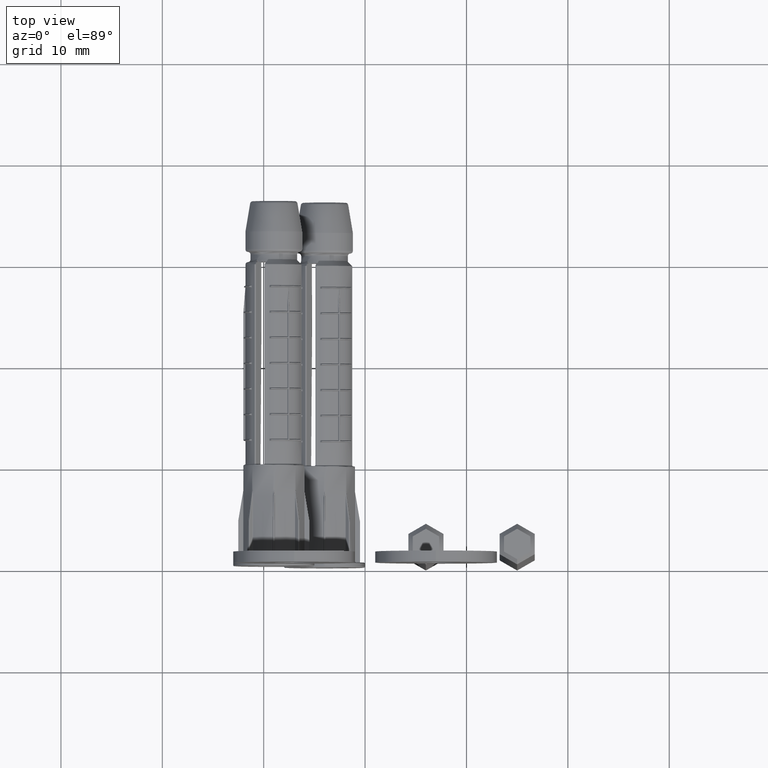
[diagram: clean part render]
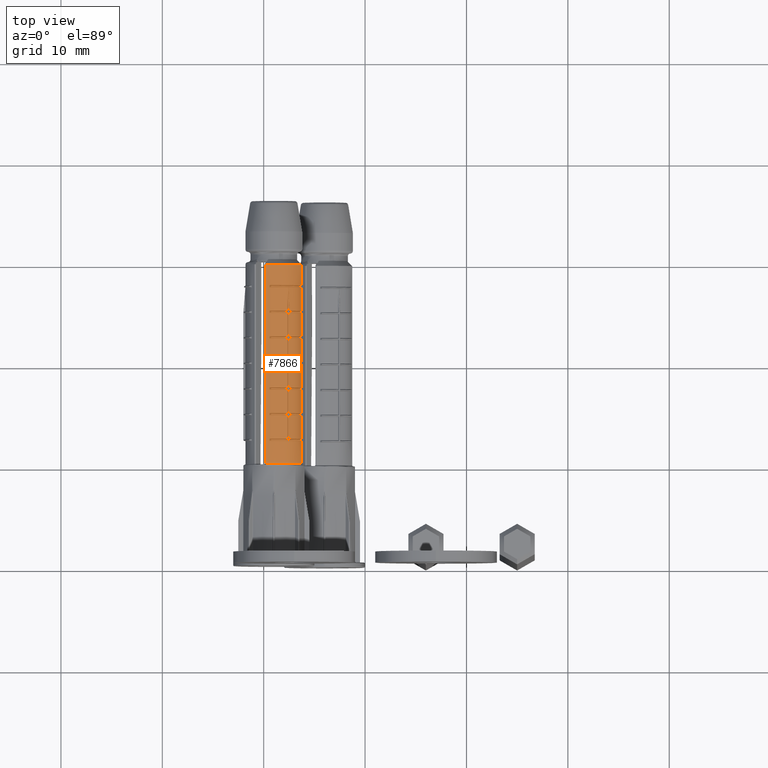
[diagram: same view with one face highlighted and labeled with its STEP entity id]
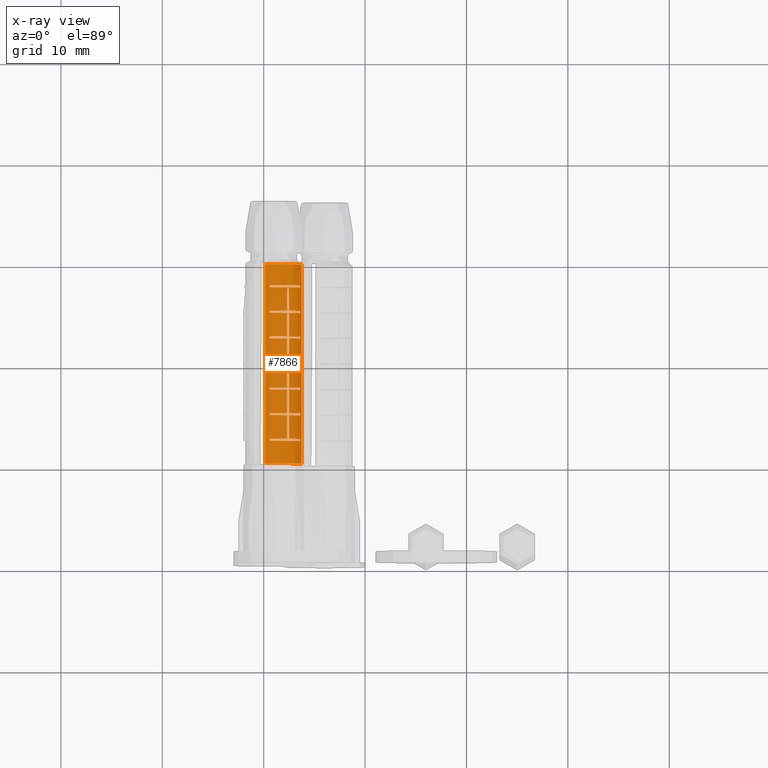
[diagram: x-ray of the same camera — body ghosted, the highlighted face saturated]
A machine part, top view. The second image highlights one B-rep face of the part: STEP entity #7866.
The next image is the same camera in x-ray: the body ghosted, the highlighted face saturated — about 0% of this face is hidden behind the body in this view.
In plain terms, the highlighted cylindrical surface (edge-blend (fillet) strip) has radius 2.8 mm, axis along (0, 1, 0).
Its self-contained STEP definition (entity closure, byte-faithful):
#12 = DIRECTION ( 'NONE',  ( 4.540655609425219795E-18, 4.182044590197350193E-18, 1.000000000000000000 ) ) ;
#15 = CARTESIAN_POINT ( 'NONE',  ( 2.483748580117750571, -1.292668940898268781, -17.37499999999999645 ) ) ;
#19 = CARTESIAN_POINT ( 'NONE',  ( 1.016432192480531516, -2.608997048309794398, -36.00000000000000000 ) ) ;
#21 = CARTESIAN_POINT ( 'NONE',  ( 2.361358431559888338, -1.504654896546389287, -22.42499999999999716 ) ) ;
#44 = EDGE_CURVE ( 'NONE', #821, #12773, #1514, .T. ) ;
#94 = ORIENTED_EDGE ( 'NONE', *, *, #44, .T. ) ;
#191 = EDGE_CURVE ( 'NONE', #16725, #10409, #23261, .T. ) ;
#216 = DIRECTION ( 'NONE',  ( -0.000000000000000000, -6.803593328596414068E-18, -1.000000000000000000 ) ) ;
#229 = LINE ( 'NONE', #26628, #25954 ) ;
#230 = CARTESIAN_POINT ( 'NONE',  ( 0.6222222222222220100, -2.729988920521994267, -10.09999999999999787 ) ) ;
#403 = EDGE_CURVE ( 'NONE', #5732, #11425, #16669, .T. ) ;
#421 = LINE ( 'NONE', #23364, #16932 ) ;
#437 = VECTOR ( 'NONE', #6446, 1000.000000000000000 ) ;
#527 = CARTESIAN_POINT ( 'NONE',  ( 1.016432192480531294, -2.608997048309793954, -12.32500000000000107 ) ) ;
#538 = CARTESIAN_POINT ( 'NONE',  ( -1.256626439908429046E-16, -1.157380840337116386E-16, -27.67499999999999361 ) ) ;
#550 = CARTESIAN_POINT ( 'NONE',  ( 1.016432192480531294, -2.608997048309794842, -25.14999999999999858 ) ) ;
#560 = VERTEX_POINT ( 'NONE', #23003 ) ;
#708 = VERTEX_POINT ( 'NONE', #4021 ) ;
#714 = EDGE_CURVE ( 'NONE', #7219, #18919, #25548, .T. ) ;
#754 = EDGE_CURVE ( 'NONE', #7028, #10923, #3454, .T. ) ;
#778 = VECTOR ( 'NONE', #12419, 1000.000000000000000 ) ;
#813 = DIRECTION ( 'NONE',  ( -0.8660254037844363761, 0.5000000000000039968, 0.000000000000000000 ) ) ;
#821 = VERTEX_POINT ( 'NONE', #230 ) ;
#986 = CARTESIAN_POINT ( 'NONE',  ( 2.483748580117775884, -1.292668940898222152, -26.50506116889412667 ) ) ;
#989 = CARTESIAN_POINT ( 'NONE',  ( 2.363096400378641437, -1.501944770892657210, -26.69959461916819521 ) ) ;
#1099 = DIRECTION ( 'NONE',  ( 0.000000000000000000, 6.803593328596414068E-18, 1.000000000000000000 ) ) ;
#1107 = CARTESIAN_POINT ( 'NONE',  ( -1.027323331632455730E-16, -9.461875885321501577E-17, -22.62500000000000000 ) ) ;
#1164 = VERTEX_POINT ( 'NONE', #1557 ) ;
#1252 = ORIENTED_EDGE ( 'NONE', *, *, #10383, .T. ) ;
#1269 = CARTESIAN_POINT ( 'NONE',  ( 2.455181414339694612, -1.346136777107339810, -27.47499999999999076 ) ) ;
#1289 = EDGE_CURVE ( 'NONE', #25523, #7966, #15981, .T. ) ;
#1298 = DIRECTION ( 'NONE',  ( -0.000000000000000000, -6.803593328596414068E-18, -1.000000000000000000 ) ) ;
#1312 = DIRECTION ( 'NONE',  ( -0.000000000000000000, -6.803593328596414068E-18, -1.000000000000000000 ) ) ;
#1500 = VERTEX_POINT ( 'NONE', #16163 ) ;
#1514 = LINE ( 'NONE', #15770, #12737 ) ;
#1534 = VECTOR ( 'NONE', #20898, 1000.000000000000000 ) ;
#1557 = CARTESIAN_POINT ( 'NONE',  ( 2.767673818475167025, 0.4242424242424212011, -20.10000000000000142 ) ) ;
#1616 = LINE ( 'NONE', #8891, #5237 ) ;
#1629 = VECTOR ( 'NONE', #23681, 1000.000000000000000 ) ;
#1639 = ORIENTED_EDGE ( 'NONE', *, *, #24068, .T. ) ;
#1717 = DIRECTION ( 'NONE',  ( -0.8660254037844363761, 0.5000000000000039968, 0.000000000000000000 ) ) ;
#1792 = CARTESIAN_POINT ( 'NONE',  ( 1.016432192480531072, -2.608997048309794398, -36.00000000000000000 ) ) ;
#1809 = CIRCLE ( 'NONE', #3439, 2.799999999999999822 ) ;
#1833 = VERTEX_POINT ( 'NONE', #5149 ) ;
#2206 = AXIS2_PLACEMENT_3D ( 'NONE', #19788, #26332, #26144 ) ;
#2207 = VERTEX_POINT ( 'NONE', #4478 ) ;
#2261 = CARTESIAN_POINT ( 'NONE',  ( -6.833686692184955106E-17, -6.293977108247012473E-17, -15.05000000000000071 ) ) ;
#2277 = AXIS2_PLACEMENT_3D ( 'NONE', #2261, #16833, #21255 ) ;
#2350 = DIRECTION ( 'NONE',  ( 4.540655609425219795E-18, 4.182044590197350193E-18, 1.000000000000000000 ) ) ;
#2473 = AXIS2_PLACEMENT_3D ( 'NONE', #17939, #9616, #11693 ) ;
#2527 = ORIENTED_EDGE ( 'NONE', *, *, #10143, .F. ) ;
#2586 = AXIS2_PLACEMENT_3D ( 'NONE', #24107, #4883, #2818 ) ;
#2623 = ORIENTED_EDGE ( 'NONE', *, *, #8346, .T. ) ;
#2680 = ORIENTED_EDGE ( 'NONE', *, *, #13028, .T. ) ;
#2686 = ORIENTED_EDGE ( 'NONE', *, *, #25937, .T. ) ;
#2716 = CARTESIAN_POINT ( 'NONE',  ( -1.018242020413605627E-16, -9.378234993517556545E-17, -22.42499999999999716 ) ) ;
#2818 = DIRECTION ( 'NONE',  ( -0.8660254037844363761, 0.5000000000000039968, 0.000000000000000000 ) ) ;
#2873 = DIRECTION ( 'NONE',  ( -0.8660254037844363761, 0.5000000000000039968, 0.000000000000000000 ) ) ;
#2885 = FACE_OUTER_BOUND ( 'NONE', #6356, .T. ) ;
#2898 = DIRECTION ( 'NONE',  ( 0.000000000000000000, 1.000000000000000000, 0.000000000000000000 ) ) ;
#2905 = VECTOR ( 'NONE', #18699, 1000.000000000000000 ) ;
#3045 = CARTESIAN_POINT ( 'NONE',  ( 2.361358431559887894, -1.504654896546388843, -17.57499999999999929 ) ) ;
#3082 = VERTEX_POINT ( 'NONE', #15 ) ;
#3091 = EDGE_CURVE ( 'NONE', #10409, #4357, #15930, .T. ) ;
#3097 = CARTESIAN_POINT ( 'NONE',  ( 2.483748580117750571, -1.292668940898268781, -17.57499999999999929 ) ) ;
#3200 = DIRECTION ( 'NONE',  ( -0.8660254037844363761, 0.5000000000000039968, 0.000000000000000000 ) ) ;
#3219 = ORIENTED_EDGE ( 'NONE', *, *, #13482, .T. ) ;
#3313 = CARTESIAN_POINT ( 'NONE',  ( 2.393379353113193275, -1.453181087164112872, -27.47499999999999076 ) ) ;
#3357 = AXIS2_PLACEMENT_3D ( 'NONE', #14645, #8482, #4388 ) ;
#3439 = AXIS2_PLACEMENT_3D ( 'NONE', #15127, #12, #14779 ) ;
#3454 = CIRCLE ( 'NONE', #19847, 2.800000000000000266 ) ;
#3472 = ORIENTED_EDGE ( 'NONE', *, *, #21124, .T. ) ;
#3573 = FACE_BOUND ( 'NONE', #18648, .T. ) ;
#3635 = DIRECTION ( 'NONE',  ( -0.000000000000000000, -6.803593328596414068E-18, -1.000000000000000000 ) ) ;
#3639 = CARTESIAN_POINT ( 'NONE',  ( -5.596358038616586259E-17, -5.154369957418233836E-17, -12.32500000000000107 ) ) ;
#3669 = AXIS2_PLACEMENT_3D ( 'NONE', #1107, #15871, #24323 ) ;
#3832 = CIRCLE ( 'NONE', #2206, 2.799999999999999822 ) ;
#3857 = CIRCLE ( 'NONE', #19787, 2.800000000000000266 ) ;
#3912 = CARTESIAN_POINT ( 'NONE',  ( -9.035904662756184758E-17, -8.322268734492726022E-17, -19.89999999999999858 ) ) ;
#3943 = DIRECTION ( 'NONE',  ( 0.000000000000000000, 6.803593328596414068E-18, 1.000000000000000000 ) ) ;
#3980 = DIRECTION ( 'NONE',  ( 0.000000000000000000, 6.803593328596414068E-18, 1.000000000000000000 ) ) ;
#4021 = CARTESIAN_POINT ( 'NONE',  ( 2.767673818475166581, 0.4242424242424209790, -14.84999999999999964 ) ) ;
#4124 = EDGE_CURVE ( 'NONE', #16725, #10536, #9684, .T. ) ;
#4130 = LINE ( 'NONE', #20455, #8755 ) ;
#4145 = CARTESIAN_POINT ( 'NONE',  ( 2.767673818475167025, 0.4242424242424212011, -19.89999999999999858 ) ) ;
#4144 = AXIS2_PLACEMENT_3D ( 'NONE', #21901, #15724, #11424 ) ;
#4151 = DIRECTION ( 'NONE',  ( -0.8660254037844363761, 0.5000000000000039968, 0.000000000000000000 ) ) ;
#4357 = VERTEX_POINT ( 'NONE', #15023 ) ;
#4388 = DIRECTION ( 'NONE',  ( 0.000000000000000000, 1.000000000000000000, 0.000000000000000000 ) ) ;
#4469 = ORIENTED_EDGE ( 'NONE', *, *, #27078, .T. ) ;
#4478 = CARTESIAN_POINT ( 'NONE',  ( 2.483748580117751015, -1.292668940898269225, -22.62500000000000000 ) ) ;
#4810 = CARTESIAN_POINT ( 'NONE',  ( 2.767673818475167469, 0.4242424242424211456, -12.52500000000000213 ) ) ;
#4811 = CARTESIAN_POINT ( 'NONE',  ( 2.361358431559888338, -1.504654896546389287, -24.94999999999999574 ) ) ;
#4855 = DIRECTION ( 'NONE',  ( 0.000000000000000000, 6.803593328596414068E-18, 1.000000000000000000 ) ) ;
#4883 = DIRECTION ( 'NONE',  ( 4.540655609425219795E-18, 4.182044590197350193E-18, 1.000000000000000000 ) ) ;
#4905 = CARTESIAN_POINT ( 'NONE',  ( 1.016432192480531072, -2.608997048309794398, -24.94999999999999574 ) ) ;
#5063 = CARTESIAN_POINT ( 'NONE',  ( 2.372170073811476598, -1.487569355360271572, -27.08807541499556137 ) ) ;
#5087 = EDGE_CURVE ( 'NONE', #15999, #20782, #15539, .T. ) ;
#5149 = CARTESIAN_POINT ( 'NONE',  ( 2.767673818475167469, 0.4242424242424210901, -17.57499999999999929 ) ) ;
#5237 = VECTOR ( 'NONE', #23597, 1000.000000000000000 ) ;
#5340 = CARTESIAN_POINT ( 'NONE',  ( 2.369438809451845707, -1.491903281495484679, -26.99099585964534498 ) ) ;
#5413 = DIRECTION ( 'NONE',  ( -0.8660254037844363761, 0.5000000000000039968, 0.000000000000000000 ) ) ;
#5418 = CARTESIAN_POINT ( 'NONE',  ( 1.016432192480531738, -2.608997048309794398, -20.10000000000000142 ) ) ;
#5427 = CARTESIAN_POINT ( 'NONE',  ( 2.361358431559888338, -1.504654896546389287, -26.31052289814997636 ) ) ;
#5476 = ORIENTED_EDGE ( 'NONE', *, *, #25418, .T. ) ;
#5529 = AXIS2_PLACEMENT_3D ( 'NONE', #7243, #15455, #2873 ) ;
#5732 = VERTEX_POINT ( 'NONE', #23895 ) ;
#5779 = CARTESIAN_POINT ( 'NONE',  ( 1.016432192480531294, -2.608997048309794842, -22.62500000000000000 ) ) ;
#5790 = VECTOR ( 'NONE', #3943, 1000.000000000000000 ) ;
#5953 = CIRCLE ( 'NONE', #15424, 2.799999999999999822 ) ;
#6049 = ORIENTED_EDGE ( 'NONE', *, *, #9112, .F. ) ;
#6098 = VERTEX_POINT ( 'NONE', #4145 ) ;
#6105 = LINE ( 'NONE', #12654, #7749 ) ;
#6218 = VERTEX_POINT ( 'NONE', #22262 ) ;
#6252 = CARTESIAN_POINT ( 'NONE',  ( 2.767673818475167469, 0.4242424242424211456, -15.05000000000000071 ) ) ;
#6267 = CARTESIAN_POINT ( 'NONE',  ( 2.767673818475167469, 0.4242424242424210346, -36.00000000000000000 ) ) ;
#6301 = AXIS2_PLACEMENT_3D ( 'NONE', #6358, #12546, #14928 ) ;
#6316 = EDGE_CURVE ( 'NONE', #25523, #3082, #7586, .T. ) ;
#6356 = EDGE_LOOP ( 'NONE', ( #24285, #22663, #12925, #94 ) ) ;
#6358 = CARTESIAN_POINT ( 'NONE',  ( -6.742873579996451604E-17, -6.210336216443063743E-17, -14.84999999999999964 ) ) ;
#6416 = DIRECTION ( 'NONE',  ( -0.8660254037844363761, 0.5000000000000039968, 0.000000000000000000 ) ) ;
#6446 = DIRECTION ( 'NONE',  ( -0.000000000000000000, -6.803593328596414068E-18, -1.000000000000000000 ) ) ;
#6507 = CARTESIAN_POINT ( 'NONE',  ( 2.483748580117751903, -1.292668940898269447, -36.00000000000000000 ) ) ;
#6543 = ORIENTED_EDGE ( 'NONE', *, *, #6910, .T. ) ;
#6580 = AXIS2_PLACEMENT_3D ( 'NONE', #11819, #18154, #20551 ) ;
#6659 = ORIENTED_EDGE ( 'NONE', *, *, #22587, .T. ) ;
#6678 = CARTESIAN_POINT ( 'NONE',  ( 1.016432192480531294, -2.608997048309793954, -14.84999999999999964 ) ) ;
#6910 = EDGE_CURVE ( 'NONE', #21684, #20041, #26352, .T. ) ;
#6979 = CARTESIAN_POINT ( 'NONE',  ( 2.483748580117751015, -1.292668940898269003, -19.89999999999999858 ) ) ;
#7026 = EDGE_CURVE ( 'NONE', #7301, #7540, #26993, .T. ) ;
#7028 = VERTEX_POINT ( 'NONE', #550 ) ;
#7083 = VERTEX_POINT ( 'NONE', #23504 ) ;
#7127 = ORIENTED_EDGE ( 'NONE', *, *, #23452, .T. ) ;
#7142 = LINE ( 'NONE', #12620, #1534 ) ;
#7175 = VERTEX_POINT ( 'NONE', #4905 ) ;
#7204 = CARTESIAN_POINT ( 'NONE',  ( 2.483748580117751903, -1.292668940898269447, -36.00000000000000000 ) ) ;
#7219 = VERTEX_POINT ( 'NONE', #15951 ) ;
#7243 = CARTESIAN_POINT ( 'NONE',  ( -1.132893574551592038E-16, -1.043420125254238707E-16, -24.94999999999999574 ) ) ;
#7264 = VECTOR ( 'NONE', #10067, 1000.000000000000000 ) ;
#7301 = VERTEX_POINT ( 'NONE', #20738 ) ;
#7362 = CARTESIAN_POINT ( 'NONE',  ( -7.889389121376318181E-17, -7.266302475467895499E-17, -17.37499999999999645 ) ) ;
#7368 = DIRECTION ( 'NONE',  ( -0.000000000000000000, -6.803593328596414068E-18, -1.000000000000000000 ) ) ;
#7383 = CIRCLE ( 'NONE', #10605, 2.800000000000000266 ) ;
#7414 = VECTOR ( 'NONE', #10750, 1000.000000000000000 ) ;
#7428 = B_SPLINE_CURVE_WITH_KNOTS ( 'NONE', 3,
 ( #17870, #11619, #13712, #5063, #5340, #989, #15753, #5427 ),
 .UNSPECIFIED., .F., .F.,
 ( 4, 2, 2, 4 ),
 ( 0.000000000000000000, 0.0002919254474833839056, 0.0005838508949667678112, 0.001167701789933524997 ),
 .UNSPECIFIED. ) ;
#7513 = CARTESIAN_POINT ( 'NONE',  ( 2.483748580117751015, -1.292668940898269225, -24.94999999999999574 ) ) ;
#7540 = VERTEX_POINT ( 'NONE', #19395 ) ;
#7586 = LINE ( 'NONE', #20230, #7264 ) ;
#7609 = VERTEX_POINT ( 'NONE', #5418 ) ;
#7665 = DIRECTION ( 'NONE',  ( -0.000000000000000000, -6.803593328596414068E-18, -1.000000000000000000 ) ) ;
#7749 = VECTOR ( 'NONE', #21210, 1000.000000000000000 ) ;
#7772 = CIRCLE ( 'NONE', #20412, 2.800000000000000266 ) ;
#7866 = ADVANCED_FACE ( 'NONE', ( #2885, #3573 ), #24341, .T. ) ;
#7965 = ORIENTED_EDGE ( 'NONE', *, *, #22961, .T. ) ;
#7966 = VERTEX_POINT ( 'NONE', #6252 ) ;
#8051 = EDGE_CURVE ( 'NONE', #7175, #20349, #19063, .T. ) ;
#8227 = CARTESIAN_POINT ( 'NONE',  ( 2.767673818475167469, 0.4242424242424209790, -36.00000000000000000 ) ) ;
#8252 = CARTESIAN_POINT ( 'NONE',  ( 1.016432192480531072, -2.608997048309794398, -27.47499999999999076 ) ) ;
#8264 = VECTOR ( 'NONE', #3980, 1000.000000000000000 ) ;
#8346 = EDGE_CURVE ( 'NONE', #15999, #560, #16132, .T. ) ;
#8482 = DIRECTION ( 'NONE',  ( -0.000000000000000000, -6.803593328596413297E-18, -1.000000000000000000 ) ) ;
#8492 = VECTOR ( 'NONE', #7368, 1000.000000000000000 ) ;
#8502 = LINE ( 'NONE', #17541, #18695 ) ;
#8549 = EDGE_CURVE ( 'NONE', #26598, #19681, #1616, .T. ) ;
#8629 = ORIENTED_EDGE ( 'NONE', *, *, #15264, .T. ) ;
#8635 = CARTESIAN_POINT ( 'NONE',  ( 1.016432192480531294, -2.608997048309793954, -17.37499999999999645 ) ) ;
#8712 = ORIENTED_EDGE ( 'NONE', *, *, #714, .T. ) ;
#8755 = VECTOR ( 'NONE', #12271, 1000.000000000000000 ) ;
#8832 = VERTEX_POINT ( 'NONE', #14205 ) ;
#8880 = DIRECTION ( 'NONE',  ( 4.540655609425219795E-18, 4.182044590197350193E-18, 1.000000000000000000 ) ) ;
#8891 = CARTESIAN_POINT ( 'NONE',  ( 2.483748580117751903, -1.292668940898269447, -36.00000000000000000 ) ) ;
#8904 = EDGE_CURVE ( 'NONE', #22719, #1833, #22389, .T. ) ;
#8991 = DIRECTION ( 'NONE',  ( -0.8660254037844363761, 0.5000000000000039968, 0.000000000000000000 ) ) ;
#9035 = EDGE_CURVE ( 'NONE', #12773, #15341, #5953, .T. ) ;
#9051 = VECTOR ( 'NONE', #3635, 1000.000000000000000 ) ;
#9112 = EDGE_CURVE ( 'NONE', #26598, #10971, #27016, .T. ) ;
#9183 = DIRECTION ( 'NONE',  ( 0.000000000000000000, 6.803593328596414068E-18, 1.000000000000000000 ) ) ;
#9239 = DIRECTION ( 'NONE',  ( 4.540655609425219795E-18, 4.182044590197350193E-18, 1.000000000000000000 ) ) ;
#9322 = CARTESIAN_POINT ( 'NONE',  ( 2.361358431559888338, -1.504654896546389287, -22.62500000000000000 ) ) ;
#9361 = CARTESIAN_POINT ( 'NONE',  ( 1.016432192480531516, -2.608997048309794398, -36.00000000000000000 ) ) ;
#9444 = DIRECTION ( 'NONE',  ( 4.540655609425219795E-18, 4.182044590197350193E-18, 1.000000000000000000 ) ) ;
#9499 = AXIS2_PLACEMENT_3D ( 'NONE', #25133, #12540, #16753 ) ;
#9510 = DIRECTION ( 'NONE',  ( 0.000000000000000000, 6.803593328596414068E-18, 1.000000000000000000 ) ) ;
#9524 = DIRECTION ( 'NONE',  ( -0.8660254037844363761, 0.5000000000000039968, 0.000000000000000000 ) ) ;
#9558 = CARTESIAN_POINT ( 'NONE',  ( 2.483748580117751015, -1.292668940898269225, -25.14999999999999858 ) ) ;
#9591 = ORIENTED_EDGE ( 'NONE', *, *, #3091, .T. ) ;
#9602 = CARTESIAN_POINT ( 'NONE',  ( 2.361358431559887894, -1.504654896546388843, -12.52500000000000213 ) ) ;
#9610 = AXIS2_PLACEMENT_3D ( 'NONE', #3912, #14816, #6416 ) ;
#9613 = DIRECTION ( 'NONE',  ( 4.540655609425219795E-18, 4.182044590197350193E-18, 1.000000000000000000 ) ) ;
#9616 = DIRECTION ( 'NONE',  ( 4.540655609425219795E-18, 4.182044590197350193E-18, 1.000000000000000000 ) ) ;
#9684 = CIRCLE ( 'NONE', #20257, 2.799999999999999822 ) ;
#9820 = ORIENTED_EDGE ( 'NONE', *, *, #14003, .T. ) ;
#9883 = AXIS2_PLACEMENT_3D ( 'NONE', #21052, #27017, #27296 ) ;
#9982 = VERTEX_POINT ( 'NONE', #23690 ) ;
#9993 = CARTESIAN_POINT ( 'NONE',  ( 0.6222222222222217880, -2.729988920521993379, -29.74999999999999645 ) ) ;
#10029 = EDGE_CURVE ( 'NONE', #2207, #14407, #14163, .T. ) ;
#10067 = DIRECTION ( 'NONE',  ( -0.000000000000000000, -6.803593328596414068E-18, -1.000000000000000000 ) ) ;
#10143 = EDGE_CURVE ( 'NONE', #7609, #16971, #17101, .T. ) ;
#10150 = CARTESIAN_POINT ( 'NONE',  ( 2.767673818475167469, 0.4242424242424216452, -36.00000000000000000 ) ) ;
#10322 = CARTESIAN_POINT ( 'NONE',  ( 2.675350868333214560, 0.8261342090173465769, -36.00000000000000000 ) ) ;
#10332 = CIRCLE ( 'NONE', #2473, 2.800000000000000266 ) ;
#10383 = EDGE_CURVE ( 'NONE', #22891, #23911, #23035, .T. ) ;
#10409 = VERTEX_POINT ( 'NONE', #8635 ) ;
#10450 = LINE ( 'NONE', #23113, #5790 ) ;
#10469 = CARTESIAN_POINT ( 'NONE',  ( -1.247545128689578942E-16, -1.149016751156721759E-16, -27.47499999999999076 ) ) ;
#10529 = ORIENTED_EDGE ( 'NONE', *, *, #20172, .T. ) ;
#10536 = VERTEX_POINT ( 'NONE', #3045 ) ;
#10605 = AXIS2_PLACEMENT_3D ( 'NONE', #2716, #24005, #19575 ) ;
#10750 = DIRECTION ( 'NONE',  ( 0.000000000000000000, 6.803593328596414068E-18, 1.000000000000000000 ) ) ;
#10758 = AXIS2_PLACEMENT_3D ( 'NONE', #7362, #22094, #9524 ) ;
#10772 = VERTEX_POINT ( 'NONE', #8252 ) ;
#10861 = DIRECTION ( 'NONE',  ( 4.540655609425219795E-18, 4.182044590197350193E-18, 1.000000000000000000 ) ) ;
#10923 = VERTEX_POINT ( 'NONE', #14879 ) ;
#10971 = VERTEX_POINT ( 'NONE', #4810 ) ;
#11082 = DIRECTION ( 'NONE',  ( 4.540655609425219795E-18, 4.182044590197350193E-18, 1.000000000000000000 ) ) ;
#11095 = LINE ( 'NONE', #17655, #14036 ) ;
#11349 = ORIENTED_EDGE ( 'NONE', *, *, #22723, .T. ) ;
#11424 = DIRECTION ( 'NONE',  ( -0.8660254037844363761, 0.5000000000000039968, 0.000000000000000000 ) ) ;
#11425 = VERTEX_POINT ( 'NONE', #13061 ) ;
#11517 = AXIS2_PLACEMENT_3D ( 'NONE', #3639, #18389, #1717 ) ;
#11529 = CARTESIAN_POINT ( 'NONE',  ( 2.474357888538994743, -1.310574868337772481, -27.08807541499458083 ) ) ;
#11619 = CARTESIAN_POINT ( 'NONE',  ( 2.384165743644992563, -1.468355839205425672, -27.37920234786882290 ) ) ;
#11633 = CARTESIAN_POINT ( 'NONE',  ( -1.247545128689578942E-16, -1.149016751156721759E-16, -27.47499999999999076 ) ) ;
#11693 = DIRECTION ( 'NONE',  ( -0.8660254037844363761, 0.5000000000000039968, 0.000000000000000000 ) ) ;
#11819 = CARTESIAN_POINT ( 'NONE',  ( -1.132893574551592038E-16, -1.043420125254238707E-16, -24.94999999999999574 ) ) ;
#11883 = AXIS2_PLACEMENT_3D ( 'NONE', #25808, #15153, #8991 ) ;
#12023 = LINE ( 'NONE', #10150, #778 ) ;
#12046 = EDGE_CURVE ( 'NONE', #20041, #21565, #27264, .T. ) ;
#12080 = VECTOR ( 'NONE', #14383, 1000.000000000000000 ) ;
#12098 = VERTEX_POINT ( 'NONE', #3313 ) ;
#12119 = DIRECTION ( 'NONE',  ( -0.8660254037844363761, 0.5000000000000039968, 0.000000000000000000 ) ) ;
#12218 = VECTOR ( 'NONE', #14531, 1000.000000000000000 ) ;
#12271 = DIRECTION ( 'NONE',  ( 0.000000000000000000, 6.803593328596414068E-18, 1.000000000000000000 ) ) ;
#12326 = LINE ( 'NONE', #22301, #23192 ) ;
#12360 = CARTESIAN_POINT ( 'NONE',  ( 2.767673818475166581, 0.4242424242424209235, -17.37499999999999645 ) ) ;
#12419 = DIRECTION ( 'NONE',  ( -0.000000000000000000, -6.803593328596414068E-18, -1.000000000000000000 ) ) ;
#12540 = DIRECTION ( 'NONE',  ( 4.540655609425219795E-18, 4.182044590197350193E-18, 1.000000000000000000 ) ) ;
#12546 = DIRECTION ( 'NONE',  ( 4.540655609425219795E-18, 4.182044590197350193E-18, 1.000000000000000000 ) ) ;
#12560 = CIRCLE ( 'NONE', #11517, 2.799999999999999822 ) ;
#12586 = CIRCLE ( 'NONE', #2277, 2.799999999999999822 ) ;
#12620 = CARTESIAN_POINT ( 'NONE',  ( 2.361358431559888338, -1.504654896546389509, -36.00000000000000000 ) ) ;
#12654 = CARTESIAN_POINT ( 'NONE',  ( 1.016432192480531072, -2.608997048309794398, -36.00000000000000000 ) ) ;
#12673 = ORIENTED_EDGE ( 'NONE', *, *, #8051, .T. ) ;
#12687 = EDGE_CURVE ( 'NONE', #2207, #13805, #19967, .T. ) ;
#12737 = VECTOR ( 'NONE', #26067, 1000.000000000000000 ) ;
#12773 = VERTEX_POINT ( 'NONE', #9993 ) ;
#12814 = CARTESIAN_POINT ( 'NONE',  ( 2.767673818475166581, 0.4242424242424209790, -12.32500000000000107 ) ) ;
#12878 = EDGE_CURVE ( 'NONE', #4357, #23175, #7142, .T. ) ;
#12925 = ORIENTED_EDGE ( 'NONE', *, *, #21722, .T. ) ;
#12947 = ORIENTED_EDGE ( 'NONE', *, *, #12046, .T. ) ;
#13028 = EDGE_CURVE ( 'NONE', #7609, #7219, #11095, .T. ) ;
#13041 = DIRECTION ( 'NONE',  ( -0.8660254037844363761, 0.5000000000000039968, 0.000000000000000000 ) ) ;
#13061 = CARTESIAN_POINT ( 'NONE',  ( 2.455181414339694612, -1.346136777107339810, -27.47499999999999076 ) ) ;
#13094 = CARTESIAN_POINT ( 'NONE',  ( 2.767673818475167469, 0.4242424242424216452, -36.00000000000000000 ) ) ;
#13365 = ORIENTED_EDGE ( 'NONE', *, *, #8904, .T. ) ;
#13431 = CARTESIAN_POINT ( 'NONE',  ( 0.000000000000000000, -2.024069015257432827E-16, -29.74999999999999645 ) ) ;
#13482 = EDGE_CURVE ( 'NONE', #3082, #22719, #17338, .T. ) ;
#13712 = CARTESIAN_POINT ( 'NONE',  ( 2.379905641839961117, -1.475161883330791346, -27.28203077829557444 ) ) ;
#13720 = CARTESIAN_POINT ( 'NONE',  ( 1.016432192480531738, -2.608997048309794842, -15.05000000000000071 ) ) ;
#13805 = VERTEX_POINT ( 'NONE', #7513 ) ;
#13892 = CARTESIAN_POINT ( 'NONE',  ( 2.463716330371346075, -1.330570181223416082, -27.37920234786985674 ) ) ;
#14003 = EDGE_CURVE ( 'NONE', #560, #14177, #18631, .T. ) ;
#14036 = VECTOR ( 'NONE', #4855, 1000.000000000000000 ) ;
#14163 = CIRCLE ( 'NONE', #27267, 2.800000000000000266 ) ;
#14177 = VERTEX_POINT ( 'NONE', #21 ) ;
#14181 = EDGE_CURVE ( 'NONE', #9982, #10772, #19909, .T. ) ;
#14192 = VERTEX_POINT ( 'NONE', #17624 ) ;
#14199 = CARTESIAN_POINT ( 'NONE',  ( 2.483748580117751903, -1.292668940898269447, -36.00000000000000000 ) ) ;
#14205 = CARTESIAN_POINT ( 'NONE',  ( 2.675350868333214116, 0.8261342090173467989, -10.09999999999999787 ) ) ;
#14383 = DIRECTION ( 'NONE',  ( 0.000000000000000000, 6.803593328596414068E-18, 1.000000000000000000 ) ) ;
#14407 = VERTEX_POINT ( 'NONE', #16339 ) ;
#14408 = AXIS2_PLACEMENT_3D ( 'NONE', #19971, #21755, #813 ) ;
#14531 = DIRECTION ( 'NONE',  ( 0.000000000000000000, 6.803593328596414068E-18, 1.000000000000000000 ) ) ;
#14577 = CARTESIAN_POINT ( 'NONE',  ( 1.016432192480531516, -2.608997048309794398, -36.00000000000000000 ) ) ;
#14612 = CARTESIAN_POINT ( 'NONE',  ( 2.483748580117751015, -1.292668940898269225, -20.10000000000000142 ) ) ;
#14645 = CARTESIAN_POINT ( 'NONE',  ( 0.000000000000000000, -2.449293598294708880E-16, -36.00000000000000000 ) ) ;
#14779 = DIRECTION ( 'NONE',  ( -0.8660254037844363761, 0.5000000000000039968, 0.000000000000000000 ) ) ;
#14816 = DIRECTION ( 'NONE',  ( 4.540655609425219795E-18, 4.182044590197350193E-18, 1.000000000000000000 ) ) ;
#14879 = CARTESIAN_POINT ( 'NONE',  ( 2.361358431559888338, -1.504654896546389287, -25.14999999999999858 ) ) ;
#14928 = DIRECTION ( 'NONE',  ( -0.8660254037844363761, 0.5000000000000039968, 0.000000000000000000 ) ) ;
#15023 = CARTESIAN_POINT ( 'NONE',  ( 2.361358431559887894, -1.504654896546388843, -17.37499999999999645 ) ) ;
#15058 = ORIENTED_EDGE ( 'NONE', *, *, #14181, .T. ) ;
#15082 = ORIENTED_EDGE ( 'NONE', *, *, #15261, .T. ) ;
#15088 = LINE ( 'NONE', #14199, #20336 ) ;
#15106 = EDGE_CURVE ( 'NONE', #6218, #27059, #7383, .T. ) ;
#15127 = CARTESIAN_POINT ( 'NONE',  ( -5.687171150805088529E-17, -5.238010849222183182E-17, -12.52500000000000213 ) ) ;
#15153 = DIRECTION ( 'NONE',  ( 4.540655609425219795E-18, 4.182044590197350193E-18, 1.000000000000000000 ) ) ;
#15159 = DIRECTION ( 'NONE',  ( 0.000000000000000000, 6.803593328596414068E-18, 1.000000000000000000 ) ) ;
#15242 = LINE ( 'NONE', #9361, #26421 ) ;
#15261 = EDGE_CURVE ( 'NONE', #22026, #10923, #26150, .T. ) ;
#15264 = EDGE_CURVE ( 'NONE', #27059, #14407, #12023, .T. ) ;
#15341 = VERTEX_POINT ( 'NONE', #22894 ) ;
#15345 = CARTESIAN_POINT ( 'NONE',  ( 2.483748580117750571, -1.292668940898268781, -12.52500000000000213 ) ) ;
#15424 = AXIS2_PLACEMENT_3D ( 'NONE', #13431, #25859, #2898 ) ;
#15432 = CARTESIAN_POINT ( 'NONE',  ( 1.016432192480531072, -2.608997048309794398, -36.00000000000000000 ) ) ;
#15455 = DIRECTION ( 'NONE',  ( 4.540655609425219795E-18, 4.182044590197350193E-18, 1.000000000000000000 ) ) ;
#15539 = CIRCLE ( 'NONE', #3669, 2.800000000000000266 ) ;
#15554 = CARTESIAN_POINT ( 'NONE',  ( 2.483748580117750571, -1.292668940898268781, -14.84999999999999964 ) ) ;
#15575 = CARTESIAN_POINT ( 'NONE',  ( -7.889389121376318181E-17, -7.266302475467895499E-17, -17.37499999999999645 ) ) ;
#15640 = EDGE_CURVE ( 'NONE', #708, #7966, #25813, .T. ) ;
#15724 = DIRECTION ( 'NONE',  ( 4.540655609425219795E-18, 4.182044590197350193E-18, 1.000000000000000000 ) ) ;
#15753 = CARTESIAN_POINT ( 'NONE',  ( 2.361358431559591242, -1.504654896546855580, -26.50506116889642172 ) ) ;
#15770 = CARTESIAN_POINT ( 'NONE',  ( 0.6222222222222220100, -2.729988920521994267, -36.00000000000000000 ) ) ;
#15798 = ORIENTED_EDGE ( 'NONE', *, *, #8549, .T. ) ;
#15871 = DIRECTION ( 'NONE',  ( 4.540655609425219795E-18, 4.182044590197350193E-18, 1.000000000000000000 ) ) ;
#15930 = CIRCLE ( 'NONE', #24288, 2.799999999999999822 ) ;
#15951 = CARTESIAN_POINT ( 'NONE',  ( 1.016432192480531516, -2.608997048309793954, -19.89999999999999858 ) ) ;
#15981 = CIRCLE ( 'NONE', #9499, 2.799999999999999822 ) ;
#15999 = VERTEX_POINT ( 'NONE', #5779 ) ;
#16018 = DIRECTION ( 'NONE',  ( -0.8660254037844363761, 0.5000000000000039968, 0.000000000000000000 ) ) ;
#16132 = LINE ( 'NONE', #1792, #7414 ) ;
#16163 = CARTESIAN_POINT ( 'NONE',  ( 2.767673818475167469, 0.4242424242424213121, -24.94999999999999574 ) ) ;
#16260 = CARTESIAN_POINT ( 'NONE',  ( -7.980202233564825381E-17, -7.349943367271844228E-17, -17.57499999999999929 ) ) ;
#16339 = CARTESIAN_POINT ( 'NONE',  ( 2.767673818475167025, 0.4242424242424217007, -22.62500000000000000 ) ) ;
#16386 = ORIENTED_EDGE ( 'NONE', *, *, #10029, .F. ) ;
#16669 = B_SPLINE_CURVE_WITH_KNOTS ( 'NONE', 3,
 ( #26496, #986, #24109, #19487, #11529, #17948, #13892, #1269 ),
 .UNSPECIFIED., .F., .F.,
 ( 4, 2, 2, 4 ),
 ( 0.000000000000000000, 0.0005836036533015567622, 0.0008754054799523351433, 0.001167207306603113524 ),
 .UNSPECIFIED. ) ;
#16725 = VERTEX_POINT ( 'NONE', #19490 ) ;
#16753 = DIRECTION ( 'NONE',  ( -0.8660254037844363761, 0.5000000000000039968, 0.000000000000000000 ) ) ;
#16833 = DIRECTION ( 'NONE',  ( 4.540655609425219795E-18, 4.182044590197350193E-18, 1.000000000000000000 ) ) ;
#16910 = EDGE_CURVE ( 'NONE', #26859, #1164, #10332, .T. ) ;
#16932 = VECTOR ( 'NONE', #25124, 1000.000000000000000 ) ;
#16971 = VERTEX_POINT ( 'NONE', #26764 ) ;
#17101 = CIRCLE ( 'NONE', #4144, 2.800000000000000266 ) ;
#17173 = CIRCLE ( 'NONE', #11883, 2.800000000000000266 ) ;
#17196 = CARTESIAN_POINT ( 'NONE',  ( 2.361358431559887894, -1.504654896546388843, -15.05000000000000071 ) ) ;
#17211 = DIRECTION ( 'NONE',  ( -0.8660254037844363761, 0.5000000000000039968, 0.000000000000000000 ) ) ;
#17325 = CARTESIAN_POINT ( 'NONE',  ( 1.016432192480531738, -2.608997048309794842, -12.52500000000000213 ) ) ;
#17338 = CIRCLE ( 'NONE', #10758, 2.799999999999999822 ) ;
#17456 = AXIS2_PLACEMENT_3D ( 'NONE', #10469, #25505, #4151 ) ;
#17478 = EDGE_CURVE ( 'NONE', #22891, #1833, #23781, .T. ) ;
#17491 = ORIENTED_EDGE ( 'NONE', *, *, #191, .T. ) ;
#17520 = EDGE_CURVE ( 'NONE', #24911, #14192, #17173, .T. ) ;
#17541 = CARTESIAN_POINT ( 'NONE',  ( 2.361358431559888338, -1.504654896546389509, -36.00000000000000000 ) ) ;
#17624 = CARTESIAN_POINT ( 'NONE',  ( 2.767673818475167025, 0.4242424242424212011, -25.14999999999999858 ) ) ;
#17655 = CARTESIAN_POINT ( 'NONE',  ( 1.016432192480531738, -2.608997048309794398, -36.00000000000000000 ) ) ;
#17816 = ORIENTED_EDGE ( 'NONE', *, *, #20383, .T. ) ;
#17870 = CARTESIAN_POINT ( 'NONE',  ( 2.393379353113193275, -1.453181087164112872, -27.47499999999999076 ) ) ;
#17886 = EDGE_CURVE ( 'NONE', #11425, #7301, #24440, .T. ) ;
#17895 = VERTEX_POINT ( 'NONE', #12814 ) ;
#17939 = CARTESIAN_POINT ( 'NONE',  ( -9.126717774944693190E-17, -8.405909626296673519E-17, -20.10000000000000142 ) ) ;
#17948 = CARTESIAN_POINT ( 'NONE',  ( 2.467480486578951915, -1.323477802777900836, -27.28203077829503442 ) ) ;
#17999 = VERTEX_POINT ( 'NONE', #527 ) ;
#18154 = DIRECTION ( 'NONE',  ( 4.540655609425219795E-18, 4.182044590197350193E-18, 1.000000000000000000 ) ) ;
#18389 = DIRECTION ( 'NONE',  ( 4.540655609425219795E-18, 4.182044590197350193E-18, 1.000000000000000000 ) ) ;
#18413 = EDGE_CURVE ( 'NONE', #21684, #23175, #12586, .T. ) ;
#18452 = AXIS2_PLACEMENT_3D ( 'NONE', #21352, #10861, #19463 ) ;
#18459 = DIRECTION ( 'NONE',  ( 4.540655609425219795E-18, 4.182044590197350193E-18, 1.000000000000000000 ) ) ;
#18631 = CIRCLE ( 'NONE', #9883, 2.800000000000000266 ) ;
#18648 = EDGE_LOOP ( 'NONE', ( #21441, #19731, #22334, #23680, #19690, #15058, #17816, #18680, #15082, #20581, #7127, #12673, #3472, #20393, #2623, #9820, #11349, #2527, #2680, #8712, #6659, #18991, #17491, #9591, #20770, #26491, #6543, #12947, #26921, #23257, #4469, #5476, #26971, #2686, #6049, #15798, #7965, #22750, #23185, #24104, #3219, #13365, #19993, #1252, #23901, #10529, #25181, #22485, #22962, #8629, #16386, #20899, #19239, #1639, #22074 ) ) ;
#18680 = ORIENTED_EDGE ( 'NONE', *, *, #23683, .T. ) ;
#18695 = VECTOR ( 'NONE', #15159, 1000.000000000000000 ) ;
#18699 = DIRECTION ( 'NONE',  ( -0.000000000000000000, -6.803593328596414068E-18, -1.000000000000000000 ) ) ;
#18809 = EDGE_CURVE ( 'NONE', #7083, #17895, #12560, .T. ) ;
#18851 = EDGE_CURVE ( 'NONE', #23911, #6098, #25066, .T. ) ;
#18907 = LINE ( 'NONE', #20697, #9051 ) ;
#18919 = VERTEX_POINT ( 'NONE', #22896 ) ;
#18991 = ORIENTED_EDGE ( 'NONE', *, *, #4124, .F. ) ;
#19063 = CIRCLE ( 'NONE', #5529, 2.800000000000000266 ) ;
#19140 = DIRECTION ( 'NONE',  ( 4.540655609425219795E-18, 4.182044590197350193E-18, 1.000000000000000000 ) ) ;
#19222 = VECTOR ( 'NONE', #9510, 1000.000000000000000 ) ;
#19239 = ORIENTED_EDGE ( 'NONE', *, *, #20594, .T. ) ;
#19395 = CARTESIAN_POINT ( 'NONE',  ( 2.767673818475167025, 0.4242424242424215897, -27.67499999999999361 ) ) ;
#19422 = AXIS2_PLACEMENT_3D ( 'NONE', #16260, #18459, #12119 ) ;
#19463 = DIRECTION ( 'NONE',  ( -0.8660254037844363761, 0.5000000000000039968, 0.000000000000000000 ) ) ;
#19487 = CARTESIAN_POINT ( 'NONE',  ( 2.476745546490396688, -1.306042560950279041, -26.99099585964414771 ) ) ;
#19490 = CARTESIAN_POINT ( 'NONE',  ( 1.016432192480531738, -2.608997048309794842, -17.57499999999999929 ) ) ;
#19575 = DIRECTION ( 'NONE',  ( -0.8660254037844363761, 0.5000000000000039968, 0.000000000000000000 ) ) ;
#19681 = VERTEX_POINT ( 'NONE', #15554 ) ;
#19690 = ORIENTED_EDGE ( 'NONE', *, *, #22801, .F. ) ;
#19731 = ORIENTED_EDGE ( 'NONE', *, *, #403, .T. ) ;
#19787 = AXIS2_PLACEMENT_3D ( 'NONE', #11633, #9444, #3200 ) ;
#19788 = CARTESIAN_POINT ( 'NONE',  ( 0.000000000000000000, -6.871629261882377608E-17, -10.09999999999999787 ) ) ;
#19797 = EDGE_CURVE ( 'NONE', #15341, #8832, #22050, .T. ) ;
#19847 = AXIS2_PLACEMENT_3D ( 'NONE', #25650, #2350, #13041 ) ;
#19909 = LINE ( 'NONE', #15432, #23231 ) ;
#19967 = LINE ( 'NONE', #22369, #8492 ) ;
#19971 = CARTESIAN_POINT ( 'NONE',  ( -6.742873579996451604E-17, -6.210336216443063743E-17, -14.84999999999999964 ) ) ;
#19993 = ORIENTED_EDGE ( 'NONE', *, *, #17478, .F. ) ;
#20041 = VERTEX_POINT ( 'NONE', #6678 ) ;
#20154 = AXIS2_PLACEMENT_3D ( 'NONE', #21823, #9239, #16018 ) ;
#20172 = EDGE_CURVE ( 'NONE', #6098, #1164, #229, .T. ) ;
#20230 = CARTESIAN_POINT ( 'NONE',  ( 2.483748580117751903, -1.292668940898269447, -36.00000000000000000 ) ) ;
#20257 = AXIS2_PLACEMENT_3D ( 'NONE', #23561, #19140, #17211 ) ;
#20336 = VECTOR ( 'NONE', #7665, 1000.000000000000000 ) ;
#20349 = VERTEX_POINT ( 'NONE', #4811 ) ;
#20383 = EDGE_CURVE ( 'NONE', #10772, #12098, #3857, .T. ) ;
#20393 = ORIENTED_EDGE ( 'NONE', *, *, #5087, .F. ) ;
#20412 = AXIS2_PLACEMENT_3D ( 'NONE', #538, #11082, #23584 ) ;
#20455 = CARTESIAN_POINT ( 'NONE',  ( 2.361358431559888338, -1.504654896546389509, -36.00000000000000000 ) ) ;
#20470 = EDGE_CURVE ( 'NONE', #26859, #6218, #24635, .T. ) ;
#20551 = DIRECTION ( 'NONE',  ( -0.8660254037844363761, 0.5000000000000039968, 0.000000000000000000 ) ) ;
#20568 = EDGE_CURVE ( 'NONE', #24911, #5732, #15088, .T. ) ;
#20581 = ORIENTED_EDGE ( 'NONE', *, *, #754, .F. ) ;
#20594 = EDGE_CURVE ( 'NONE', #13805, #1500, #23294, .T. ) ;
#20697 = CARTESIAN_POINT ( 'NONE',  ( 2.767673818475167469, 0.4242424242424212011, -36.00000000000000000 ) ) ;
#20738 = CARTESIAN_POINT ( 'NONE',  ( 2.767673818475167469, 0.4242424242424217007, -27.47499999999999076 ) ) ;
#20770 = ORIENTED_EDGE ( 'NONE', *, *, #12878, .T. ) ;
#20782 = VERTEX_POINT ( 'NONE', #9322 ) ;
#20898 = DIRECTION ( 'NONE',  ( 0.000000000000000000, 6.803593328596414068E-18, 1.000000000000000000 ) ) ;
#20899 = ORIENTED_EDGE ( 'NONE', *, *, #12687, .T. ) ;
#20909 = VERTEX_POINT ( 'NONE', #9602 ) ;
#21052 = CARTESIAN_POINT ( 'NONE',  ( -1.018242020413605627E-16, -9.378234993517556545E-17, -22.42499999999999716 ) ) ;
#21124 = EDGE_CURVE ( 'NONE', #20349, #20782, #8502, .T. ) ;
#21198 = CIRCLE ( 'NONE', #2586, 2.799999999999999822 ) ;
#21210 = DIRECTION ( 'NONE',  ( 0.000000000000000000, 6.803593328596414068E-18, 1.000000000000000000 ) ) ;
#21255 = DIRECTION ( 'NONE',  ( -0.8660254037844363761, 0.5000000000000039968, 0.000000000000000000 ) ) ;
#21352 = CARTESIAN_POINT ( 'NONE',  ( -9.035904662756184758E-17, -8.322268734492726022E-17, -19.89999999999999858 ) ) ;
#21441 = ORIENTED_EDGE ( 'NONE', *, *, #20568, .T. ) ;
#21565 = VERTEX_POINT ( 'NONE', #26059 ) ;
#21653 = CARTESIAN_POINT ( 'NONE',  ( -1.027323331632455730E-16, -9.461875885321501577E-17, -22.62500000000000000 ) ) ;
#21684 = VERTEX_POINT ( 'NONE', #13720 ) ;
#21722 = EDGE_CURVE ( 'NONE', #8832, #821, #3832, .T. ) ;
#21755 = DIRECTION ( 'NONE',  ( 4.540655609425219795E-18, 4.182044590197350193E-18, 1.000000000000000000 ) ) ;
#21823 = CARTESIAN_POINT ( 'NONE',  ( -5.687171150805088529E-17, -5.238010849222183182E-17, -12.52500000000000213 ) ) ;
#21901 = CARTESIAN_POINT ( 'NONE',  ( -9.126717774944693190E-17, -8.405909626296673519E-17, -20.10000000000000142 ) ) ;
#22026 = VERTEX_POINT ( 'NONE', #23014 ) ;
#22050 = LINE ( 'NONE', #10322, #12218 ) ;
#22074 = ORIENTED_EDGE ( 'NONE', *, *, #17520, .F. ) ;
#22094 = DIRECTION ( 'NONE',  ( 4.540655609425219795E-18, 4.182044590197350193E-18, 1.000000000000000000 ) ) ;
#22262 = CARTESIAN_POINT ( 'NONE',  ( 2.483748580117751015, -1.292668940898269225, -22.42499999999999716 ) ) ;
#22267 = CARTESIAN_POINT ( 'NONE',  ( 2.483748580117750571, -1.292668940898268781, -15.05000000000000071 ) ) ;
#22301 = CARTESIAN_POINT ( 'NONE',  ( 2.767673818475167469, 0.4242424242424210346, -36.00000000000000000 ) ) ;
#22334 = ORIENTED_EDGE ( 'NONE', *, *, #17886, .T. ) ;
#22369 = CARTESIAN_POINT ( 'NONE',  ( 2.483748580117751903, -1.292668940898269447, -36.00000000000000000 ) ) ;
#22389 = LINE ( 'NONE', #8227, #2905 ) ;
#22485 = ORIENTED_EDGE ( 'NONE', *, *, #20470, .T. ) ;
#22587 = EDGE_CURVE ( 'NONE', #18919, #10536, #4130, .T. ) ;
#22663 = ORIENTED_EDGE ( 'NONE', *, *, #19797, .T. ) ;
#22719 = VERTEX_POINT ( 'NONE', #12360 ) ;
#22723 = EDGE_CURVE ( 'NONE', #14177, #16971, #10450, .T. ) ;
#22750 = ORIENTED_EDGE ( 'NONE', *, *, #15640, .T. ) ;
#22801 = EDGE_CURVE ( 'NONE', #9982, #7540, #7772, .T. ) ;
#22858 = VERTEX_POINT ( 'NONE', #17325 ) ;
#22891 = VERTEX_POINT ( 'NONE', #3097 ) ;
#22894 = CARTESIAN_POINT ( 'NONE',  ( 2.675350868333213672, 0.8261342090173464658, -29.74999999999999645 ) ) ;
#22896 = CARTESIAN_POINT ( 'NONE',  ( 2.361358431559888338, -1.504654896546389065, -19.89999999999999858 ) ) ;
#22961 = EDGE_CURVE ( 'NONE', #19681, #708, #23240, .T. ) ;
#22962 = ORIENTED_EDGE ( 'NONE', *, *, #15106, .T. ) ;
#23003 = CARTESIAN_POINT ( 'NONE',  ( 1.016432192480531072, -2.608997048309794398, -22.42499999999999716 ) ) ;
#23014 = CARTESIAN_POINT ( 'NONE',  ( 2.361358431559888338, -1.504654896546389287, -26.31052289814997636 ) ) ;
#23035 = LINE ( 'NONE', #6507, #23996 ) ;
#23113 = CARTESIAN_POINT ( 'NONE',  ( 2.361358431559888338, -1.504654896546389509, -36.00000000000000000 ) ) ;
#23175 = VERTEX_POINT ( 'NONE', #17196 ) ;
#23185 = ORIENTED_EDGE ( 'NONE', *, *, #1289, .F. ) ;
#23192 = VECTOR ( 'NONE', #1298, 1000.000000000000000 ) ;
#23231 = VECTOR ( 'NONE', #9183, 1000.000000000000000 ) ;
#23240 = CIRCLE ( 'NONE', #14408, 2.799999999999999822 ) ;
#23257 = ORIENTED_EDGE ( 'NONE', *, *, #23483, .F. ) ;
#23261 = LINE ( 'NONE', #14577, #12080 ) ;
#23294 = CIRCLE ( 'NONE', #6580, 2.800000000000000266 ) ;
#23364 = CARTESIAN_POINT ( 'NONE',  ( 2.361358431559888338, -1.504654896546389509, -36.00000000000000000 ) ) ;
#23452 = EDGE_CURVE ( 'NONE', #7028, #7175, #6105, .T. ) ;
#23483 = EDGE_CURVE ( 'NONE', #22858, #20909, #1809, .T. ) ;
#23504 = CARTESIAN_POINT ( 'NONE',  ( 2.424871130596422120, -1.400000000000011235, -12.32500000000000107 ) ) ;
#23561 = CARTESIAN_POINT ( 'NONE',  ( -7.980202233564825381E-17, -7.349943367271844228E-17, -17.57499999999999929 ) ) ;
#23584 = DIRECTION ( 'NONE',  ( -0.8660254037844363761, 0.5000000000000039968, 0.000000000000000000 ) ) ;
#23597 = DIRECTION ( 'NONE',  ( -0.000000000000000000, -6.803593328596414068E-18, -1.000000000000000000 ) ) ;
#23680 = ORIENTED_EDGE ( 'NONE', *, *, #7026, .T. ) ;
#23681 = DIRECTION ( 'NONE',  ( -0.000000000000000000, -6.803593328596414068E-18, -1.000000000000000000 ) ) ;
#23683 = EDGE_CURVE ( 'NONE', #12098, #22026, #7428, .T. ) ;
#23690 = CARTESIAN_POINT ( 'NONE',  ( 1.016432192480531294, -2.608997048309794842, -27.67499999999999361 ) ) ;
#23781 = CIRCLE ( 'NONE', #19422, 2.799999999999999822 ) ;
#23895 = CARTESIAN_POINT ( 'NONE',  ( 2.483748580117751903, -1.292668940898269669, -26.31052289814725853 ) ) ;
#23901 = ORIENTED_EDGE ( 'NONE', *, *, #18851, .T. ) ;
#23911 = VERTEX_POINT ( 'NONE', #6979 ) ;
#23946 = CARTESIAN_POINT ( 'NONE',  ( 2.767673818475167469, 0.4242424242424218117, -22.42499999999999716 ) ) ;
#23996 = VECTOR ( 'NONE', #216, 1000.000000000000000 ) ;
#24005 = DIRECTION ( 'NONE',  ( 4.540655609425219795E-18, 4.182044590197350193E-18, 1.000000000000000000 ) ) ;
#24068 = EDGE_CURVE ( 'NONE', #1500, #14192, #18907, .T. ) ;
#24104 = ORIENTED_EDGE ( 'NONE', *, *, #6316, .T. ) ;
#24107 = CARTESIAN_POINT ( 'NONE',  ( -5.596358038616586259E-17, -5.154369957418233836E-17, -12.32500000000000107 ) ) ;
#24109 = CARTESIAN_POINT ( 'NONE',  ( 2.482270526863570304, -1.295529128873119218, -26.69959461916634424 ) ) ;
#24285 = ORIENTED_EDGE ( 'NONE', *, *, #9035, .T. ) ;
#24288 = AXIS2_PLACEMENT_3D ( 'NONE', #15575, #8880, #26056 ) ;
#24323 = DIRECTION ( 'NONE',  ( -0.8660254037844363761, 0.5000000000000039968, 0.000000000000000000 ) ) ;
#24341 = CYLINDRICAL_SURFACE ( 'NONE', #3357, 2.799999999999999822 ) ;
#24440 = CIRCLE ( 'NONE', #17456, 2.800000000000000266 ) ;
#24635 = LINE ( 'NONE', #7204, #26266 ) ;
#24911 = VERTEX_POINT ( 'NONE', #9558 ) ;
#25066 = CIRCLE ( 'NONE', #9610, 2.800000000000000266 ) ;
#25124 = DIRECTION ( 'NONE',  ( 0.000000000000000000, 6.803593328596414068E-18, 1.000000000000000000 ) ) ;
#25133 = CARTESIAN_POINT ( 'NONE',  ( -6.833686692184955106E-17, -6.293977108247012473E-17, -15.05000000000000071 ) ) ;
#25181 = ORIENTED_EDGE ( 'NONE', *, *, #16910, .F. ) ;
#25418 = EDGE_CURVE ( 'NONE', #17999, #7083, #21198, .T. ) ;
#25505 = DIRECTION ( 'NONE',  ( 4.540655609425219795E-18, 4.182044590197350193E-18, 1.000000000000000000 ) ) ;
#25523 = VERTEX_POINT ( 'NONE', #22267 ) ;
#25548 = CIRCLE ( 'NONE', #18452, 2.800000000000000266 ) ;
#25650 = CARTESIAN_POINT ( 'NONE',  ( -1.141974885770442881E-16, -1.051784214434633703E-16, -25.14999999999999858 ) ) ;
#25664 = EDGE_CURVE ( 'NONE', #21565, #20909, #421, .T. ) ;
#25808 = CARTESIAN_POINT ( 'NONE',  ( -1.141974885770442881E-16, -1.051784214434633703E-16, -25.14999999999999858 ) ) ;
#25813 = LINE ( 'NONE', #6267, #437 ) ;
#25859 = DIRECTION ( 'NONE',  ( 0.000000000000000000, 6.803593328596413297E-18, 1.000000000000000000 ) ) ;
#25937 = EDGE_CURVE ( 'NONE', #17895, #10971, #12326, .T. ) ;
#25954 = VECTOR ( 'NONE', #1312, 1000.000000000000000 ) ;
#26056 = DIRECTION ( 'NONE',  ( -0.8660254037844363761, 0.5000000000000039968, 0.000000000000000000 ) ) ;
#26059 = CARTESIAN_POINT ( 'NONE',  ( 2.361358431559887894, -1.504654896546388843, -14.84999999999999964 ) ) ;
#26067 = DIRECTION ( 'NONE',  ( -0.000000000000000000, -6.803593328596414068E-18, -1.000000000000000000 ) ) ;
#26144 = DIRECTION ( 'NONE',  ( 0.000000000000000000, 1.000000000000000000, 0.000000000000000000 ) ) ;
#26150 = LINE ( 'NONE', #26666, #19222 ) ;
#26266 = VECTOR ( 'NONE', #26427, 1000.000000000000000 ) ;
#26332 = DIRECTION ( 'NONE',  ( -0.000000000000000000, -6.803593328596413297E-18, -1.000000000000000000 ) ) ;
#26352 = LINE ( 'NONE', #19, #8264 ) ;
#26421 = VECTOR ( 'NONE', #1099, 1000.000000000000000 ) ;
#26427 = DIRECTION ( 'NONE',  ( -0.000000000000000000, -6.803593328596414068E-18, -1.000000000000000000 ) ) ;
#26491 = ORIENTED_EDGE ( 'NONE', *, *, #18413, .F. ) ;
#26496 = CARTESIAN_POINT ( 'NONE',  ( 2.483748580117751903, -1.292668940898269669, -26.31052289814725853 ) ) ;
#26598 = VERTEX_POINT ( 'NONE', #15345 ) ;
#26628 = CARTESIAN_POINT ( 'NONE',  ( 2.767673818475167469, 0.4242424242424211456, -36.00000000000000000 ) ) ;
#26666 = CARTESIAN_POINT ( 'NONE',  ( 2.361358431559888338, -1.504654896546389509, -36.00000000000000000 ) ) ;
#26764 = CARTESIAN_POINT ( 'NONE',  ( 2.361358431559888338, -1.504654896546389287, -20.10000000000000142 ) ) ;
#26859 = VERTEX_POINT ( 'NONE', #14612 ) ;
#26921 = ORIENTED_EDGE ( 'NONE', *, *, #25664, .T. ) ;
#26971 = ORIENTED_EDGE ( 'NONE', *, *, #18809, .T. ) ;
#26993 = LINE ( 'NONE', #13094, #1629 ) ;
#27016 = CIRCLE ( 'NONE', #20154, 2.799999999999999822 ) ;
#27017 = DIRECTION ( 'NONE',  ( 4.540655609425219795E-18, 4.182044590197350193E-18, 1.000000000000000000 ) ) ;
#27059 = VERTEX_POINT ( 'NONE', #23946 ) ;
#27078 = EDGE_CURVE ( 'NONE', #22858, #17999, #15242, .T. ) ;
#27264 = CIRCLE ( 'NONE', #6301, 2.799999999999999822 ) ;
#27267 = AXIS2_PLACEMENT_3D ( 'NONE', #21653, #9613, #5413 ) ;
#27296 = DIRECTION ( 'NONE',  ( -0.8660254037844363761, 0.5000000000000039968, 0.000000000000000000 ) ) ;